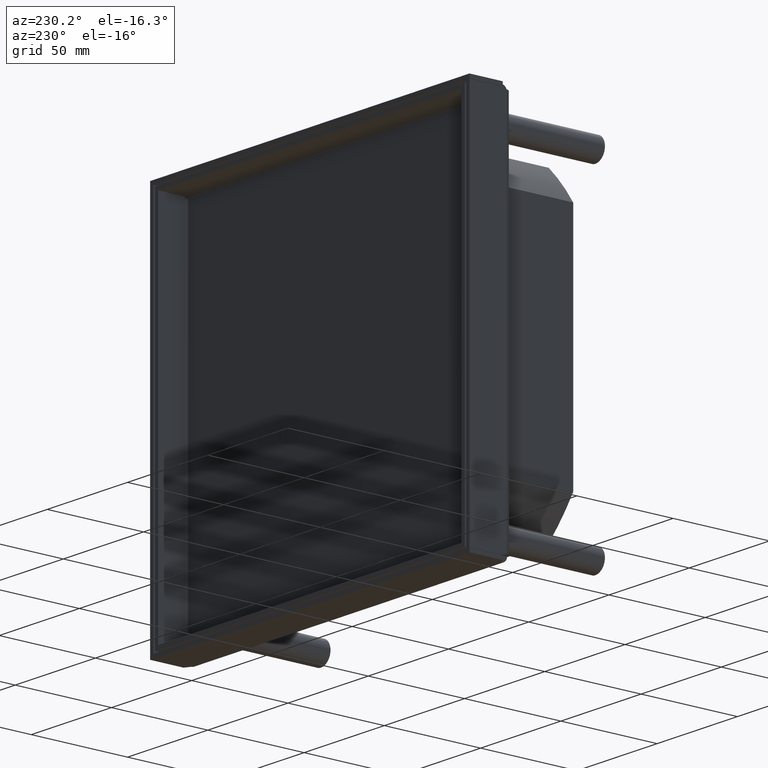
[diagram: clean part render]
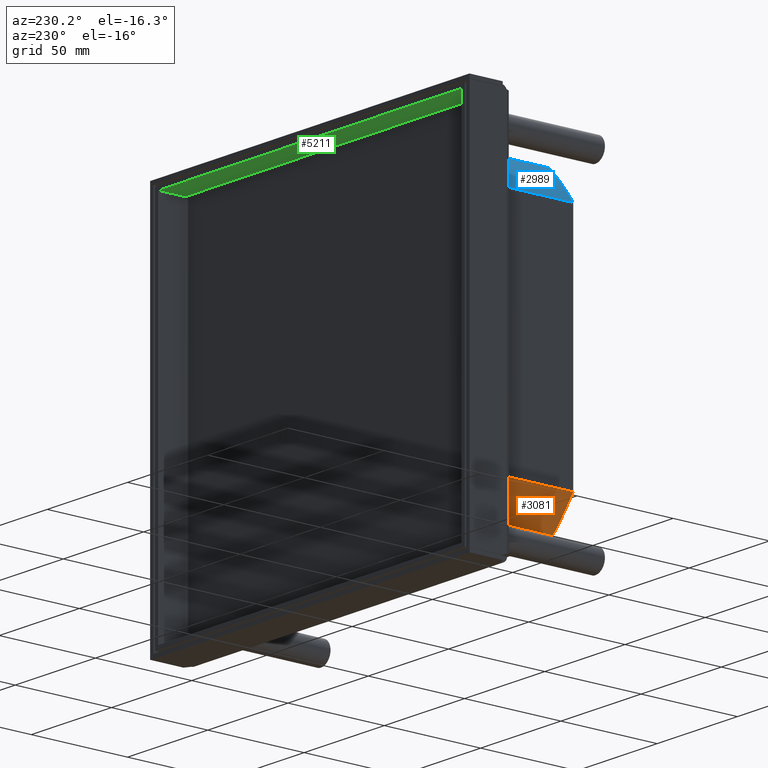
[diagram: same view with three faces highlighted in distinct colors, each labeled with its STEP entity id]
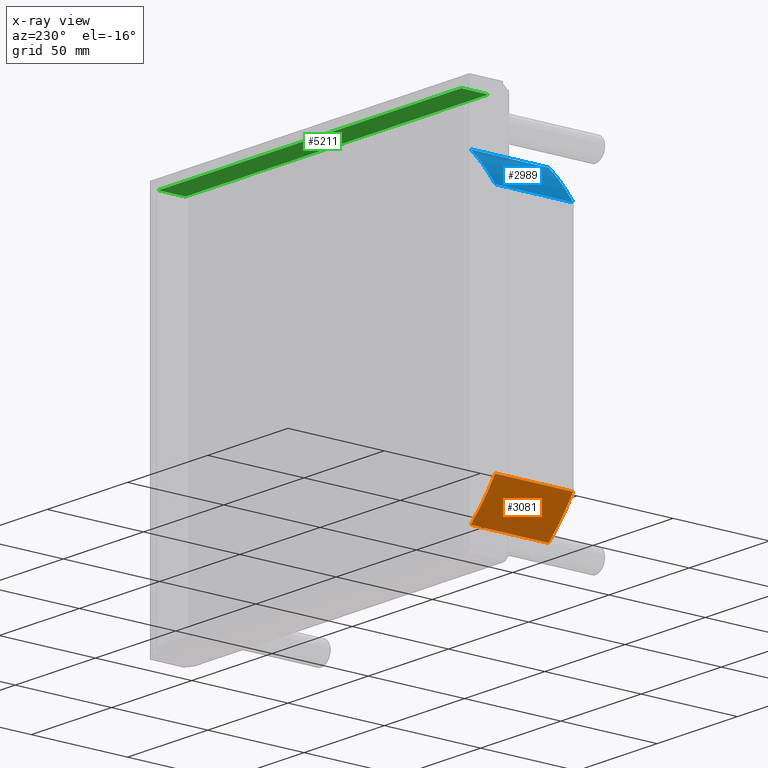
[diagram: x-ray of the same camera — body ghosted, the three highlighted faces saturated]
A machine part, auxiliary view with three faces highlighted in distinct colors.
The next image is the same camera in x-ray (body ghosted, the three faces saturated) — at least one of them is partly hidden behind the body in this view.
Their STEP definitions:

[orange] entity #3081 — the highlighted cylindrical surface (partial cylindrical patch) has radius 107 mm, axis along (0, -1, 0).
#2377=CARTESIAN_POINT('',(0.E0,-4.1E1,0.E0));
#2378=DIRECTION('',(0.E0,1.E0,0.E0));
#2379=DIRECTION('',(7.289719626168E-1,0.E0,-6.845435542890E-1));
#2380=AXIS2_PLACEMENT_3D('',#2377,#2378,#2379);
#2564=DIRECTION('',(-4.596597451090E-14,-1.E0,-1.649160917567E-14));
#2565=VECTOR('',#2564,4.05E1);
#2566=CARTESIAN_POINT('',(6.013942134740E1,-5.E-1,-8.85E1));
#2567=LINE('',#2566,#2565);
#2568=DIRECTION('',(0.E0,1.E0,0.E0));
#2569=VECTOR('',#2568,4.05E1);
#2570=CARTESIAN_POINT('',(7.8E1,-4.1E1,-7.324616030892E1));
#2571=LINE('',#2570,#2569);
#2581=CARTESIAN_POINT('',(0.E0,-5.E-1,0.E0));
#2582=DIRECTION('',(0.E0,-1.E0,0.E0));
#2583=DIRECTION('',(5.620506667982E-1,0.E0,-8.271028037383E-1));
#2584=AXIS2_PLACEMENT_3D('',#2581,#2582,#2583);
#2726=CARTESIAN_POINT('',(7.8E1,-4.1E1,-7.324616030892E1));
#2727=VERTEX_POINT('',#2726);
#2728=CARTESIAN_POINT('',(6.013942134740E1,-4.1E1,-8.85E1));
#2729=VERTEX_POINT('',#2728);
#2752=CARTESIAN_POINT('',(6.013942134740E1,-5.E-1,-8.85E1));
#2753=VERTEX_POINT('',#2752);
#2756=CARTESIAN_POINT('',(7.8E1,-5.E-1,-7.324616030892E1));
#2757=VERTEX_POINT('',#2756);
#3068=CARTESIAN_POINT('',(0.E0,0.E0,0.E0));
#3069=DIRECTION('',(0.E0,-1.E0,0.E0));
#3070=DIRECTION('',(-1.E0,0.E0,0.E0));
#3071=AXIS2_PLACEMENT_3D('',#3068,#3069,#3070);
#3072=CYLINDRICAL_SURFACE('',#3071,1.07E2);
#3074=ORIENTED_EDGE('',*,*,#3073,.F.);
#3075=ORIENTED_EDGE('',*,*,#3057,.T.);
#3076=ORIENTED_EDGE('',*,*,#2822,.F.);
#3078=ORIENTED_EDGE('',*,*,#3077,.T.);
#3079=EDGE_LOOP('',(#3074,#3075,#3076,#3078));
#3080=FACE_OUTER_BOUND('',#3079,.F.);
#2381=CIRCLE('',#2380,1.07E2);
#2585=CIRCLE('',#2584,1.07E2);
#2822=EDGE_CURVE('',#2727,#2729,#2381,.T.);
#3057=EDGE_CURVE('',#2753,#2729,#2567,.T.);
#3073=EDGE_CURVE('',#2753,#2757,#2585,.T.);
#3077=EDGE_CURVE('',#2727,#2757,#2571,.T.);
#3081=ADVANCED_FACE('',(#3080),#3072,.T.);

[blue] entity #2989 — the highlighted cylindrical surface (partial cylindrical patch) has radius 107 mm, axis along (0, 1, 0).
#2386=CARTESIAN_POINT('',(0.E0,-4.1E1,0.E0));
#2387=DIRECTION('',(0.E0,1.E0,0.E0));
#2388=DIRECTION('',(-5.620506667981E-1,0.E0,-8.271028037383E-1));
#2389=AXIS2_PLACEMENT_3D('',#2386,#2387,#2388);
#2506=DIRECTION('',(0.E0,-1.E0,0.E0));
#2507=VECTOR('',#2506,4.05E1);
#2508=CARTESIAN_POINT('',(-7.8E1,-5.E-1,-7.324616030892E1));
#2509=LINE('',#2508,#2507);
#2510=DIRECTION('',(-4.614141716171E-14,1.E0,1.649160917567E-14));
#2511=VECTOR('',#2510,4.05E1);
#2512=CARTESIAN_POINT('',(-6.013942134740E1,-4.1E1,-8.85E1));
#2513=LINE('',#2512,#2511);
#2523=CARTESIAN_POINT('',(0.E0,-5.E-1,0.E0));
#2524=DIRECTION('',(0.E0,-1.E0,0.E0));
#2525=DIRECTION('',(-7.289719626168E-1,0.E0,-6.845435542890E-1));
#2526=AXIS2_PLACEMENT_3D('',#2523,#2524,#2525);
#2730=CARTESIAN_POINT('',(-6.013942134740E1,-4.1E1,-8.85E1));
#2731=VERTEX_POINT('',#2730);
#2732=CARTESIAN_POINT('',(-7.8E1,-4.1E1,-7.324616030892E1));
#2733=VERTEX_POINT('',#2732);
#2754=CARTESIAN_POINT('',(-6.013942134740E1,-5.E-1,-8.85E1));
#2755=VERTEX_POINT('',#2754);
#2774=CARTESIAN_POINT('',(-7.8E1,-5.E-1,-7.324616030892E1));
#2775=VERTEX_POINT('',#2774);
#2976=CARTESIAN_POINT('',(0.E0,0.E0,0.E0));
#2977=DIRECTION('',(0.E0,1.E0,0.E0));
#2978=DIRECTION('',(1.E0,0.E0,0.E0));
#2979=AXIS2_PLACEMENT_3D('',#2976,#2977,#2978);
#2980=CYLINDRICAL_SURFACE('',#2979,1.07E2);
#2982=ORIENTED_EDGE('',*,*,#2981,.F.);
#2983=ORIENTED_EDGE('',*,*,#2969,.T.);
#2984=ORIENTED_EDGE('',*,*,#2826,.F.);
#2986=ORIENTED_EDGE('',*,*,#2985,.T.);
#2987=EDGE_LOOP('',(#2982,#2983,#2984,#2986));
#2988=FACE_OUTER_BOUND('',#2987,.F.);
#2390=CIRCLE('',#2389,1.07E2);
#2527=CIRCLE('',#2526,1.07E2);
#2826=EDGE_CURVE('',#2731,#2733,#2390,.T.);
#2969=EDGE_CURVE('',#2775,#2733,#2509,.T.);
#2981=EDGE_CURVE('',#2775,#2755,#2527,.T.);
#2985=EDGE_CURVE('',#2731,#2755,#2513,.T.);
#2989=ADVANCED_FACE('',(#2988),#2980,.T.);

[green] entity #5211 — the highlighted planar face has unit normal (0, 0, -1).
#4524=DIRECTION('',(0.E0,0.E0,-1.E0));
#4525=VECTOR('',#4524,1.889E2);
#4526=CARTESIAN_POINT('',(9.45E1,1.7E1,9.445E1));
#4527=LINE('',#4526,#4525);
#4536=DIRECTION('',(0.E0,0.E0,-1.E0));
#4537=VECTOR('',#4536,9.5E-1);
#4538=CARTESIAN_POINT('',(9.45E1,3.E0,-9.35E1));
#4539=LINE('',#4538,#4537);
#4540=DIRECTION('',(0.E0,1.E0,0.E0));
#4541=VECTOR('',#4540,1.4E1);
#4542=CARTESIAN_POINT('',(9.45E1,3.E0,-9.445E1));
#4543=LINE('',#4542,#4541);
#4548=DIRECTION('',(0.E0,0.E0,1.E0));
#4549=VECTOR('',#4548,1.87E2);
#4550=CARTESIAN_POINT('',(9.45E1,3.E0,-9.35E1));
#4551=LINE('',#4550,#4549);
#4596=DIRECTION('',(0.E0,0.E0,1.E0));
#4597=VECTOR('',#4596,9.5E-1);
#4598=CARTESIAN_POINT('',(9.45E1,3.E0,9.35E1));
#4599=LINE('',#4598,#4597);
#4604=DIRECTION('',(0.E0,1.E0,0.E0));
#4605=VECTOR('',#4604,1.4E1);
#4606=CARTESIAN_POINT('',(9.45E1,3.E0,9.445E1));
#4607=LINE('',#4606,#4605);
#4874=CARTESIAN_POINT('',(9.45E1,3.E0,-9.35E1));
#4875=VERTEX_POINT('',#4874);
#4886=CARTESIAN_POINT('',(9.45E1,1.7E1,9.445E1));
#4887=CARTESIAN_POINT('',(9.45E1,1.7E1,-9.445E1));
#4888=VERTEX_POINT('',#4886);
#4889=VERTEX_POINT('',#4887);
#4890=CARTESIAN_POINT('',(9.45E1,3.E0,9.35E1));
#4891=VERTEX_POINT('',#4890);
#4892=CARTESIAN_POINT('',(9.45E1,3.E0,-9.445E1));
#4893=VERTEX_POINT('',#4892);
#4894=CARTESIAN_POINT('',(9.45E1,3.E0,9.445E1));
#4895=VERTEX_POINT('',#4894);
#5193=CARTESIAN_POINT('',(9.45E1,0.E0,-7.12844E1));
#5194=DIRECTION('',(-1.E0,0.E0,0.E0));
#5195=DIRECTION('',(0.E0,0.E0,1.E0));
#5196=AXIS2_PLACEMENT_3D('',#5193,#5194,#5195);
#5197=PLANE('',#5196);
#5199=ORIENTED_EDGE('',*,*,#5198,.F.);
#5201=ORIENTED_EDGE('',*,*,#5200,.T.);
#5203=ORIENTED_EDGE('',*,*,#5202,.T.);
#5204=ORIENTED_EDGE('',*,*,#5183,.F.);
#5206=ORIENTED_EDGE('',*,*,#5205,.F.);
#5208=ORIENTED_EDGE('',*,*,#5207,.F.);
#5209=EDGE_LOOP('',(#5199,#5201,#5203,#5204,#5206,#5208));
#5210=FACE_OUTER_BOUND('',#5209,.F.);
#5183=EDGE_CURVE('',#4888,#4889,#4527,.T.);
#5198=EDGE_CURVE('',#4875,#4891,#4551,.T.);
#5200=EDGE_CURVE('',#4875,#4893,#4539,.T.);
#5202=EDGE_CURVE('',#4893,#4889,#4543,.T.);
#5205=EDGE_CURVE('',#4895,#4888,#4607,.T.);
#5207=EDGE_CURVE('',#4891,#4895,#4599,.T.);
#5211=ADVANCED_FACE('',(#5210),#5197,.T.);